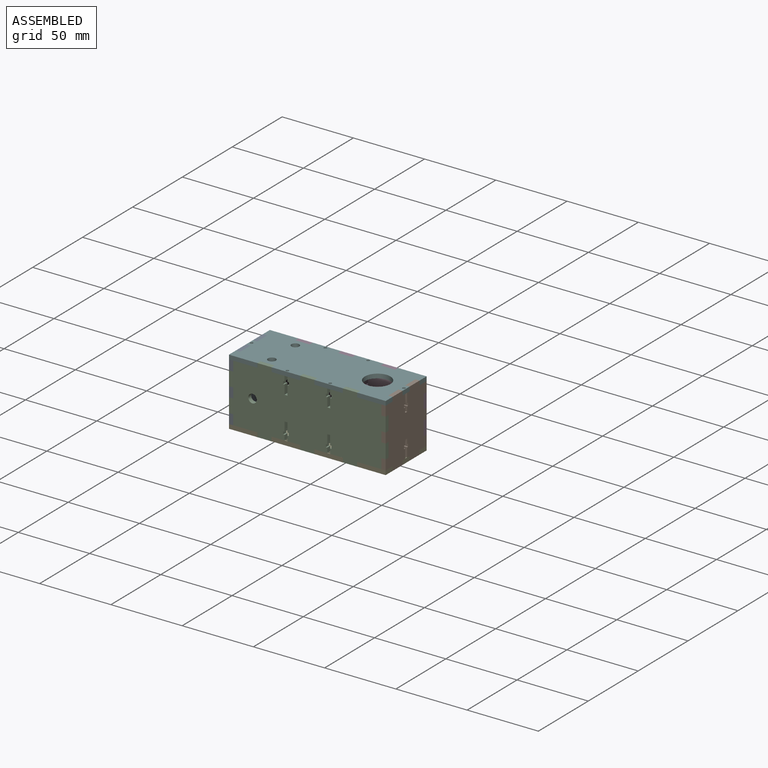
[diagram: assembled view]
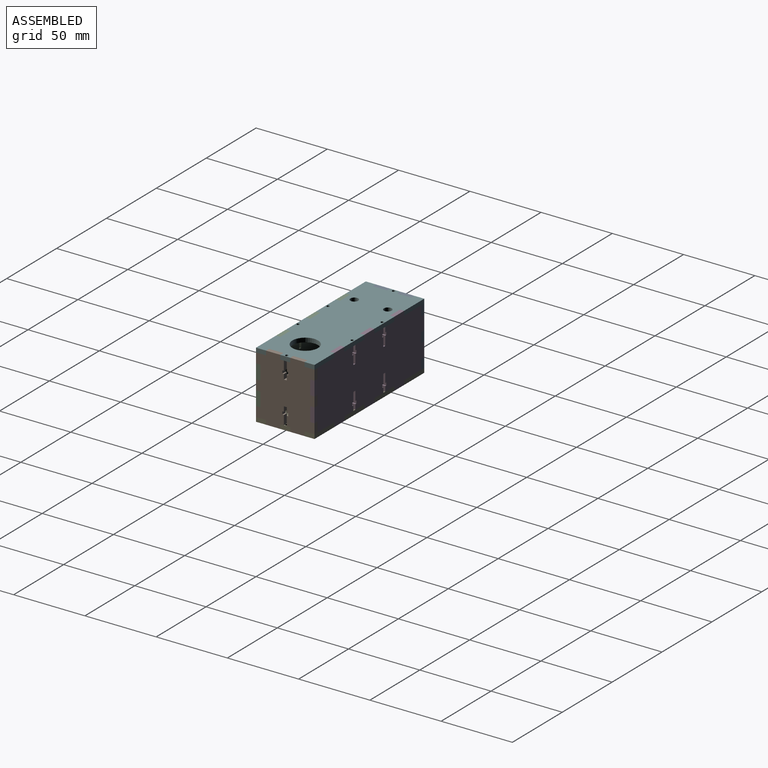
[diagram: assembled view, second angle]
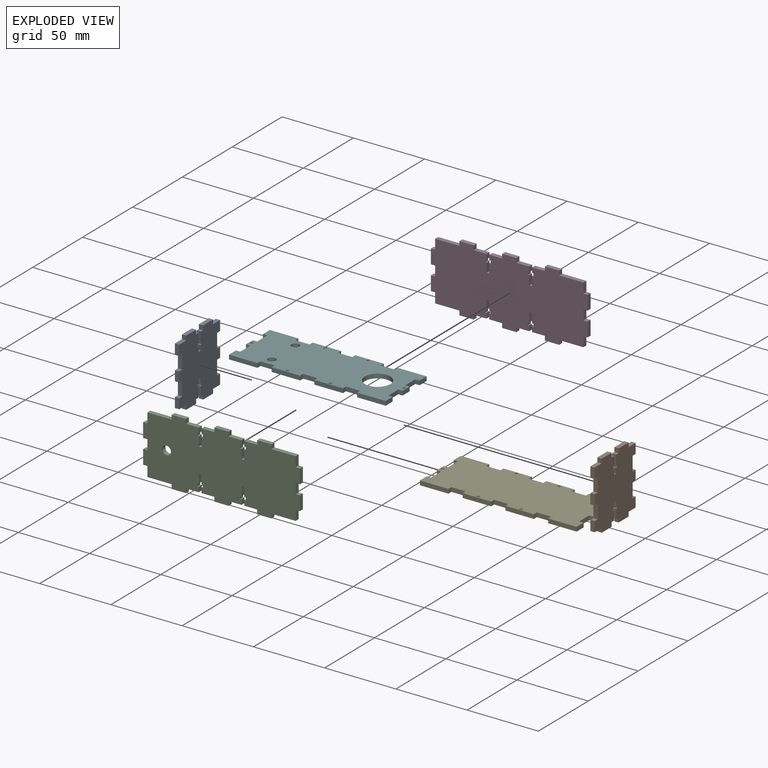
[diagram: exploded view]
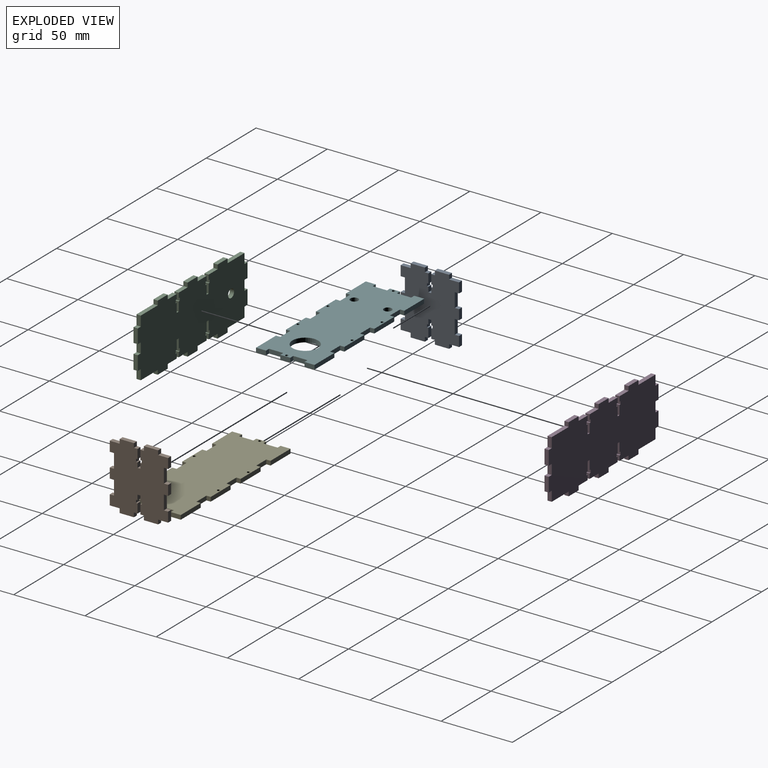
[diagram: exploded view, second angle]
ASSEMBLY  parts=6 mates=5
PART A: 62 faces, bbox 3x47x41 mm
  f0: plane 10x3mm, normal (0,-1,0), area 30mm2, adj f1,f59,f60,f61
  f1: plane 3x3mm, normal (0,0,-1), area 9mm2, adj f0,f2,f60,f61
  f2: plane 3x2.5mm, normal (0,-1,0), area 7.5mm2, adj f1,f3,f60,f61
  f3: plane 6.5x3mm, normal (0,0,-1), area 19.5mm2, adj f2,f4,f60,f61
  f4: plane 3x1mm, normal (0,1,0), area 3mm2, adj f3,f5,f60,f61
  f5: plane 3x2mm, normal (0,0,-1), area 6mm2, adj f4,f6,f60,f61
  f6: plane 3x1mm, normal (0,-1,0), area 3mm2, adj f5,f7,f60,f61
  f7: plane 3.5x3mm, normal (0,0,-1), area 10.5mm2, adj f6,f8,f60,f61
  f8: plane 3x2mm, normal (0,-1,0), area 6mm2, adj f7,f9,f60,f61
  f9: plane 3.5x3mm, normal (0,0,1), area 10.5mm2, adj f8,f10,f60,f61
  f10: plane 3x1mm, normal (0,-1,0), area 3mm2, adj f9,f11,f60,f61
  f11: plane 3x2mm, normal (0,0,1), area 6mm2, adj f10,f12,f60,f61
  f12: plane 3x1mm, normal (0,1,0), area 3mm2, adj f11,f13,f60,f61
  f13: plane 6.5x3mm, normal (0,0,1), area 19.5mm2, adj f12,f14,f60,f61
  f14: plane 3x2.5mm, normal (0,-1,0), area 7.5mm2, adj f13,f15,f60,f61
  f15: plane 3x3mm, normal (0,0,1), area 9mm2, adj f14,f16,f60,f61
  f16: plane 10x3mm, normal (0,-1,0), area 30mm2, adj f15,f17,f60,f61
  f17: plane 3x3mm, normal (0,0,-1), area 9mm2, adj f16,f18,f60,f61
  f18: plane 7x3mm, normal (0,-1,0), area 21mm2, adj f17,f19,f60,f61
  f19: plane 7x3mm, normal (0,0,-1), area 21mm2, adj f18,f20,f60,f61
  f20: plane 3x3mm, normal (0,1,0), area 9mm2, adj f19,f21,f60,f61
  f21: plane 10x3mm, normal (0,0,-1), area 30mm2, adj f20,f22,f60,f61
  f22: plane 3x3mm, normal (0,-1,0), area 9mm2, adj f21,f23,f60,f61
  f23: plane 7x3mm, normal (0,0,-1), area 21mm2, adj f22,f24,f60,f61
  f24: plane 3x3mm, normal (0,1,0), area 9mm2, adj f23,f25,f60,f61
  f25: plane 10x3mm, normal (0,0,-1), area 30mm2, adj f24,f26,f60,f61
  f26: plane 3x3mm, normal (0,-1,0), area 9mm2, adj f25,f27,f60,f61
  f27: plane 7x3mm, normal (0,0,-1), area 21mm2, adj f26,f28,f60,f61
  f28: plane 7x3mm, normal (0,1,0), area 21mm2, adj f27,f29,f60,f61
  f29: plane 3x3mm, normal (0,0,-1), area 9mm2, adj f28,f30,f60,f61
  f30: plane 10x3mm, normal (0,1,0), area 30mm2, adj f29,f31,f60,f61
  f31: plane 3x3mm, normal (0,0,1), area 9mm2, adj f30,f32,f60,f61
  f32: plane 3x2.5mm, normal (0,1,0), area 7.5mm2, adj f31,f33,f60,f61
  f33: plane 6.5x3mm, normal (0,0,1), area 19.5mm2, adj f32,f34,f60,f61
  f34: plane 3x1mm, normal (0,-1,0), area 3mm2, adj f33,f35,f60,f61
  f35: plane 3x2mm, normal (0,0,1), area 6mm2, adj f34,f36,f60,f61
  f36: plane 3x1mm, normal (0,1,0), area 3mm2, adj f35,f37,f60,f61
  f37: plane 3.5x3mm, normal (0,0,1), area 10.5mm2, adj f36,f38,f60,f61
  f38: plane 3x2mm, normal (0,1,0), area 6mm2, adj f37,f39,f60,f61
  f39: plane 3.5x3mm, normal (0,0,-1), area 10.5mm2, adj f38,f40,f60,f61
  f40: plane 3x1mm, normal (0,1,0), area 3mm2, adj f39,f41,f60,f61
  f41: plane 3x2mm, normal (0,0,-1), area 6mm2, adj f40,f42,f60,f61
  f42: plane 3x1mm, normal (0,-1,0), area 3mm2, adj f41,f43,f60,f61
  f43: plane 6.5x3mm, normal (0,0,-1), area 19.5mm2, adj f42,f44,f60,f61
  f44: plane 3x2.5mm, normal (0,1,0), area 7.5mm2, adj f43,f45,f60,f61
  f45: plane 3x3mm, normal (0,0,-1), area 9mm2, adj f44,f46,f60,f61
  f46: plane 10x3mm, normal (0,1,0), area 30mm2, adj f45,f47,f60,f61
  f47: plane 3x3mm, normal (0,0,1), area 9mm2, adj f46,f48,f60,f61
  f48: plane 7x3mm, normal (0,1,0), area 21mm2, adj f47,f49,f60,f61
  f49: plane 7x3mm, normal (0,0,1), area 21mm2, adj f48,f50,f60,f61
  f50: plane 3x3mm, normal (0,-1,0), area 9mm2, adj f49,f51,f60,f61
  f51: plane 10x3mm, normal (0,0,1), area 30mm2, adj f50,f52,f60,f61
  f52: plane 3x3mm, normal (0,1,0), area 9mm2, adj f51,f53,f60,f61
  f53: plane 7x3mm, normal (0,0,1), area 21mm2, adj f52,f54,f60,f61
  f54: plane 3x3mm, normal (0,-1,0), area 9mm2, adj f53,f55,f60,f61
  f55: plane 10x3mm, normal (0,0,1), area 30mm2, adj f54,f56,f60,f61
  f56: plane 3x3mm, normal (0,1,0), area 9mm2, adj f55,f57,f60,f61
  f57: plane 7x3mm, normal (0,0,1), area 21mm2, adj f56,f58,f60,f61
  f58: plane 7x3mm, normal (0,-1,0), area 21mm2, adj f57,f59,f60,f61
  f59: plane 3x3mm, normal (0,0,1), area 9mm2, adj f0,f58,f60,f61
  f60: plane 47x41mm, normal (1,0,0), area 1625mm2, adj f0,f1,f2,f3,f4,f5,f6,f7
  f61: plane 47x41mm, normal (-1,0,0), area 1625mm2, adj f0,f1,f2,f3,f4,f5,f6,f7
PART B: 62 faces, bbox 47x41x3 mm
  f0: plane 10x3mm, normal (-1,0,0), area 30mm2, adj f1,f59,f60,f61
  f1: plane 3x3mm, normal (0,-1,0), area 9mm2, adj f0,f2,f60,f61
  f2: plane 3x2.5mm, normal (-1,0,0), area 7.5mm2, adj f1,f3,f60,f61
  f3: plane 6.5x3mm, normal (0,-1,0), area 19.5mm2, adj f2,f4,f60,f61
  f4: plane 3x1mm, normal (1,0,0), area 3mm2, adj f3,f5,f60,f61
  f5: plane 3x2mm, normal (0,-1,0), area 6mm2, adj f4,f6,f60,f61
  f6: plane 3x1mm, normal (-1,0,0), area 3mm2, adj f5,f7,f60,f61
  f7: plane 3.5x3mm, normal (0,-1,0), area 10.5mm2, adj f6,f8,f60,f61
  f8: plane 3x2mm, normal (-1,0,0), area 6mm2, adj f7,f9,f60,f61
  f9: plane 3.5x3mm, normal (0,1,0), area 10.5mm2, adj f8,f10,f60,f61
  f10: plane 3x1mm, normal (-1,0,0), area 3mm2, adj f9,f11,f60,f61
  f11: plane 3x2mm, normal (0,1,0), area 6mm2, adj f10,f12,f60,f61
  f12: plane 3x1mm, normal (1,0,0), area 3mm2, adj f11,f13,f60,f61
  f13: plane 6.5x3mm, normal (0,1,0), area 19.5mm2, adj f12,f14,f60,f61
  f14: plane 3x2.5mm, normal (-1,0,0), area 7.5mm2, adj f13,f15,f60,f61
  f15: plane 3x3mm, normal (0,1,0), area 9mm2, adj f14,f16,f60,f61
  f16: plane 10x3mm, normal (-1,0,0), area 30mm2, adj f15,f17,f60,f61
  f17: plane 3x3mm, normal (0,-1,0), area 9mm2, adj f16,f18,f60,f61
  f18: plane 7x3mm, normal (-1,0,0), area 21mm2, adj f17,f19,f60,f61
  f19: plane 7x3mm, normal (0,-1,0), area 21mm2, adj f18,f20,f60,f61
  f20: plane 3x3mm, normal (1,0,0), area 9mm2, adj f19,f21,f60,f61
  f21: plane 10x3mm, normal (0,-1,0), area 30mm2, adj f20,f22,f60,f61
  f22: plane 3x3mm, normal (-1,0,0), area 9mm2, adj f21,f23,f60,f61
  f23: plane 7x3mm, normal (0,-1,0), area 21mm2, adj f22,f24,f60,f61
  f24: plane 3x3mm, normal (1,0,0), area 9mm2, adj f23,f25,f60,f61
  f25: plane 10x3mm, normal (0,-1,0), area 30mm2, adj f24,f26,f60,f61
  f26: plane 3x3mm, normal (-1,0,0), area 9mm2, adj f25,f27,f60,f61
  f27: plane 7x3mm, normal (0,-1,0), area 21mm2, adj f26,f28,f60,f61
  f28: plane 7x3mm, normal (1,0,0), area 21mm2, adj f27,f29,f60,f61
  f29: plane 3x3mm, normal (0,-1,0), area 9mm2, adj f28,f30,f60,f61
  f30: plane 10x3mm, normal (1,0,0), area 30mm2, adj f29,f31,f60,f61
  f31: plane 3x3mm, normal (0,1,0), area 9mm2, adj f30,f32,f60,f61
  f32: plane 3x2.5mm, normal (1,0,0), area 7.5mm2, adj f31,f33,f60,f61
  f33: plane 6.5x3mm, normal (0,1,0), area 19.5mm2, adj f32,f34,f60,f61
  f34: plane 3x1mm, normal (-1,0,0), area 3mm2, adj f33,f35,f60,f61
  f35: plane 3x2mm, normal (0,1,0), area 6mm2, adj f34,f36,f60,f61
  f36: plane 3x1mm, normal (1,0,0), area 3mm2, adj f35,f37,f60,f61
  f37: plane 3.5x3mm, normal (0,1,0), area 10.5mm2, adj f36,f38,f60,f61
  f38: plane 3x2mm, normal (1,0,0), area 6mm2, adj f37,f39,f60,f61
  f39: plane 3.5x3mm, normal (0,-1,0), area 10.5mm2, adj f38,f40,f60,f61
  f40: plane 3x1mm, normal (1,0,0), area 3mm2, adj f39,f41,f60,f61
  f41: plane 3x2mm, normal (0,-1,0), area 6mm2, adj f40,f42,f60,f61
  f42: plane 3x1mm, normal (-1,0,0), area 3mm2, adj f41,f43,f60,f61
  f43: plane 6.5x3mm, normal (0,-1,0), area 19.5mm2, adj f42,f44,f60,f61
  f44: plane 3x2.5mm, normal (1,0,0), area 7.5mm2, adj f43,f45,f60,f61
  f45: plane 3x3mm, normal (0,-1,0), area 9mm2, adj f44,f46,f60,f61
  f46: plane 10x3mm, normal (1,0,0), area 30mm2, adj f45,f47,f60,f61
  f47: plane 3x3mm, normal (0,1,0), area 9mm2, adj f46,f48,f60,f61
  f48: plane 7x3mm, normal (1,0,0), area 21mm2, adj f47,f49,f60,f61
  f49: plane 7x3mm, normal (0,1,0), area 21mm2, adj f48,f50,f60,f61
  f50: plane 3x3mm, normal (-1,0,0), area 9mm2, adj f49,f51,f60,f61
  f51: plane 10x3mm, normal (0,1,0), area 30mm2, adj f50,f52,f60,f61
  f52: plane 3x3mm, normal (1,0,0), area 9mm2, adj f51,f53,f60,f61
  f53: plane 7x3mm, normal (0,1,0), area 21mm2, adj f52,f54,f60,f61
  f54: plane 3x3mm, normal (-1,0,0), area 9mm2, adj f53,f55,f60,f61
  f55: plane 10x3mm, normal (0,1,0), area 30mm2, adj f54,f56,f60,f61
  f56: plane 3x3mm, normal (1,0,0), area 9mm2, adj f55,f57,f60,f61
  f57: plane 7x3mm, normal (0,1,0), area 21mm2, adj f56,f58,f60,f61
  f58: plane 7x3mm, normal (-1,0,0), area 21mm2, adj f57,f59,f60,f61
  f59: plane 3x3mm, normal (0,1,0), area 9mm2, adj f0,f58,f60,f61
  f60: plane 47x41mm, normal (0,0,1), area 1625mm2, adj f0,f1,f2,f3,f4,f5,f6,f7
  f61: plane 47x41mm, normal (0,0,-1), area 1625mm2, adj f0,f1,f2,f3,f4,f5,f6,f7
PART C: 95 faces, bbox 3x110x47 mm
  f0: plane 17x3mm, normal (0,0,1), area 51mm2, adj f1,f92,f93,f94
  f1: plane 3x3mm, normal (0,1,0), area 9mm2, adj f0,f2,f93,f94
  f2: plane 10x3mm, normal (0,0,1), area 30mm2, adj f1,f3,f93,f94
  f3: plane 3x3mm, normal (0,-1,0), area 9mm2, adj f2,f4,f93,f94
  f4: plane 9x3mm, normal (0,0,1), area 27mm2, adj f3,f5,f93,f94
  f5: plane 3.5x3mm, normal (0,-1,0), area 10.5mm2, adj f4,f6,f93,f94
  f6: plane 3x1mm, normal (0,0,-1), area 3mm2, adj f5,f7,f93,f94
  f7: plane 3x2mm, normal (0,-1,0), area 6mm2, adj f6,f8,f93,f94
  f8: plane 3x1mm, normal (0,0,1), area 3mm2, adj f7,f9,f93,f94
  f9: plane 6.5x3mm, normal (0,-1,0), area 19.5mm2, adj f8,f10,f93,f94
  f10: plane 3x2mm, normal (0,0,1), area 6mm2, adj f9,f11,f93,f94
  f11: plane 6.5x3mm, normal (0,1,0), area 19.5mm2, adj f10,f12,f93,f94
  f12: plane 3x1mm, normal (0,0,1), area 3mm2, adj f11,f13,f93,f94
  f13: plane 3x2mm, normal (0,1,0), area 6mm2, adj f12,f14,f93,f94
  f14: plane 3x1mm, normal (0,0,-1), area 3mm2, adj f13,f15,f93,f94
  f15: plane 3.5x3mm, normal (0,1,0), area 10.5mm2, adj f14,f16,f93,f94
  f16: plane 9x3mm, normal (0,0,1), area 27mm2, adj f15,f17,f93,f94
  f17: plane 3x3mm, normal (0,1,0), area 9mm2, adj f16,f18,f93,f94
  f18: plane 10x3mm, normal (0,0,1), area 30mm2, adj f17,f19,f93,f94
  f19: plane 3x3mm, normal (0,-1,0), area 9mm2, adj f18,f20,f93,f94
  f20: plane 9x3mm, normal (0,0,1), area 27mm2, adj f19,f21,f93,f94
  f21: plane 3.5x3mm, normal (0,-1,0), area 10.5mm2, adj f20,f22,f93,f94
  f22: plane 3x1mm, normal (0,0,-1), area 3mm2, adj f21,f23,f93,f94
  f23: plane 3x2mm, normal (0,-1,0), area 6mm2, adj f22,f24,f93,f94
  f24: plane 3x1mm, normal (0,0,1), area 3mm2, adj f23,f25,f93,f94
  f25: plane 6.5x3mm, normal (0,-1,0), area 19.5mm2, adj f24,f26,f93,f94
  f26: plane 3x2mm, normal (0,0,1), area 6mm2, adj f25,f27,f93,f94
  f27: plane 6.5x3mm, normal (0,1,0), area 19.5mm2, adj f26,f28,f93,f94
  f28: plane 3x1mm, normal (0,0,1), area 3mm2, adj f27,f29,f93,f94
  f29: plane 3x2mm, normal (0,1,0), area 6mm2, adj f28,f30,f93,f94
  f30: plane 3x1mm, normal (0,0,-1), area 3mm2, adj f29,f31,f93,f94
  f31: plane 3.5x3mm, normal (0,1,0), area 10.5mm2, adj f30,f32,f93,f94
  f32: plane 9x3mm, normal (0,0,1), area 27mm2, adj f31,f33,f93,f94
  f33: plane 3x3mm, normal (0,1,0), area 9mm2, adj f32,f34,f93,f94
  f34: plane 10x3mm, normal (0,0,1), area 30mm2, adj f33,f35,f93,f94
  f35: plane 3x3mm, normal (0,-1,0), area 9mm2, adj f34,f36,f93,f94
  f36: plane 17x3mm, normal (0,0,1), area 51mm2, adj f35,f37,f93,f94
  f37: plane 7x3mm, normal (0,-1,0), area 21mm2, adj f36,f38,f93,f94
  f38: plane 3x3mm, normal (0,0,1), area 9mm2, adj f37,f39,f93,f94
  f39: plane 10x3mm, normal (0,-1,0), area 30mm2, adj f38,f40,f93,f94
  f40: plane 3x3mm, normal (0,0,-1), area 9mm2, adj f39,f41,f93,f94
  f41: plane 7x3mm, normal (0,-1,0), area 21mm2, adj f40,f42,f93,f94
  f42: plane 3x3mm, normal (0,0,1), area 9mm2, adj f41,f43,f93,f94
  f43: plane 10x3mm, normal (0,-1,0), area 30mm2, adj f42,f44,f93,f94
  f44: plane 3x3mm, normal (0,0,-1), area 9mm2, adj f43,f45,f93,f94
  f45: plane 7x3mm, normal (0,-1,0), area 21mm2, adj f44,f46,f93,f94
  f46: plane 17x3mm, normal (0,0,-1), area 51mm2, adj f45,f47,f93,f94
  f47: plane 3x3mm, normal (0,-1,0), area 9mm2, adj f46,f48,f93,f94
  f48: plane 10x3mm, normal (0,0,-1), area 30mm2, adj f47,f49,f93,f94
  f49: plane 3x3mm, normal (0,1,0), area 9mm2, adj f48,f50,f93,f94
  f50: plane 9x3mm, normal (0,0,-1), area 27mm2, adj f49,f51,f93,f94
  f51: plane 3.5x3mm, normal (0,1,0), area 10.5mm2, adj f50,f52,f93,f94
  f52: plane 3x1mm, normal (0,0,1), area 3mm2, adj f51,f53,f93,f94
  f53: plane 3x2mm, normal (0,1,0), area 6mm2, adj f52,f54,f93,f94
  f54: plane 3x1mm, normal (0,0,-1), area 3mm2, adj f53,f55,f93,f94
  f55: plane 6.5x3mm, normal (0,1,0), area 19.5mm2, adj f54,f56,f93,f94
  f56: plane 3x2mm, normal (0,0,-1), area 6mm2, adj f55,f57,f93,f94
  f57: plane 6.5x3mm, normal (0,-1,0), area 19.5mm2, adj f56,f58,f93,f94
  f58: plane 3x1mm, normal (0,0,-1), area 3mm2, adj f57,f59,f93,f94
  f59: plane 3x2mm, normal (0,-1,0), area 6mm2, adj f58,f60,f93,f94
  f60: plane 3x1mm, normal (0,0,1), area 3mm2, adj f59,f61,f93,f94
  f61: plane 3.5x3mm, normal (0,-1,0), area 10.5mm2, adj f60,f62,f93,f94
  f62: plane 9x3mm, normal (0,0,-1), area 27mm2, adj f61,f63,f93,f94
  f63: plane 3x3mm, normal (0,-1,0), area 9mm2, adj f62,f64,f93,f94
  f64: plane 10x3mm, normal (0,0,-1), area 30mm2, adj f63,f65,f93,f94
  f65: plane 3x3mm, normal (0,1,0), area 9mm2, adj f64,f66,f93,f94
  f66: plane 9x3mm, normal (0,0,-1), area 27mm2, adj f65,f67,f93,f94
  f67: plane 3.5x3mm, normal (0,1,0), area 10.5mm2, adj f66,f68,f93,f94
  f68: plane 3x1mm, normal (0,0,1), area 3mm2, adj f67,f69,f93,f94
  f69: plane 3x2mm, normal (0,1,0), area 6mm2, adj f68,f70,f93,f94
  f70: plane 3x1mm, normal (0,0,-1), area 3mm2, adj f69,f71,f93,f94
  f71: plane 6.5x3mm, normal (0,1,0), area 19.5mm2, adj f70,f72,f93,f94
  f72: plane 3x2mm, normal (0,0,-1), area 6mm2, adj f71,f73,f93,f94
  f73: plane 6.5x3mm, normal (0,-1,0), area 19.5mm2, adj f72,f74,f93,f94
  f74: plane 3x1mm, normal (0,0,-1), area 3mm2, adj f73,f75,f93,f94
  f75: plane 3x2mm, normal (0,-1,0), area 6mm2, adj f74,f76,f93,f94
  f76: plane 3x1mm, normal (0,0,1), area 3mm2, adj f75,f77,f93,f94
  f77: plane 3.5x3mm, normal (0,-1,0), area 10.5mm2, adj f76,f78,f93,f94
  f78: plane 9x3mm, normal (0,0,-1), area 27mm2, adj f77,f79,f93,f94
  f79: plane 3x3mm, normal (0,-1,0), area 9mm2, adj f78,f80,f93,f94
  f80: plane 10x3mm, normal (0,0,-1), area 30mm2, adj f79,f81,f93,f94
  f81: plane 3x3mm, normal (0,1,0), area 9mm2, adj f80,f82,f93,f94
  f82: plane 17x3mm, normal (0,0,-1), area 51mm2, adj f81,f83,f93,f94
  f83: plane 7x3mm, normal (0,1,0), area 21mm2, adj f82,f84,f93,f94
  f84: plane 3x3mm, normal (0,0,-1), area 9mm2, adj f83,f85,f93,f94
  f85: plane 10x3mm, normal (0,1,0), area 30mm2, adj f84,f86,f93,f94
  f86: plane 3x3mm, normal (0,0,1), area 9mm2, adj f85,f87,f93,f94
  f87: plane 7x3mm, normal (0,1,0), area 21mm2, adj f86,f88,f93,f94
  f88: plane 3x3mm, normal (0,0,-1), area 9mm2, adj f87,f89,f93,f94
  f89: plane 10x3mm, normal (0,1,0), area 30mm2, adj f88,f90,f93,f94
  f90: plane 3x3mm, normal (0,0,1), area 9mm2, adj f89,f92,f93,f94
  f91: cylinder r=3mm len=6mm, axis (-1,0,0), area 56.5mm2, adj f93,f94
  f92: plane 7x3mm, normal (0,1,0), area 21mm2, adj f0,f90,f93,f94
  f93: plane 110x47mm, normal (1,0,0), area 4423.7mm2, adj f0,f1,f2,f3,f4,f5,f6,f7
  f94: plane 110x47mm, normal (-1,0,0), area 4423.7mm2, adj f0,f1,f2,f3,f4,f5,f6,f7
PART D: 94 faces, bbox 3x110x47 mm
  f0: plane 17x3mm, normal (0,0,1), area 51mm2, adj f1,f91,f92,f93
  f1: plane 3x3mm, normal (0,1,0), area 9mm2, adj f0,f2,f92,f93
  f2: plane 10x3mm, normal (0,0,1), area 30mm2, adj f1,f3,f92,f93
  f3: plane 3x3mm, normal (0,-1,0), area 9mm2, adj f2,f4,f92,f93
  f4: plane 9x3mm, normal (0,0,1), area 27mm2, adj f3,f5,f92,f93
  f5: plane 3.5x3mm, normal (0,-1,0), area 10.5mm2, adj f4,f6,f92,f93
  f6: plane 3x1mm, normal (0,0,-1), area 3mm2, adj f5,f7,f92,f93
  f7: plane 3x2mm, normal (0,-1,0), area 6mm2, adj f6,f8,f92,f93
  f8: plane 3x1mm, normal (0,0,1), area 3mm2, adj f7,f9,f92,f93
  f9: plane 6.5x3mm, normal (0,-1,0), area 19.5mm2, adj f8,f10,f92,f93
  f10: plane 3x2mm, normal (0,0,1), area 6mm2, adj f9,f11,f92,f93
  f11: plane 6.5x3mm, normal (0,1,0), area 19.5mm2, adj f10,f12,f92,f93
  f12: plane 3x1mm, normal (0,0,1), area 3mm2, adj f11,f13,f92,f93
  f13: plane 3x2mm, normal (0,1,0), area 6mm2, adj f12,f14,f92,f93
  f14: plane 3x1mm, normal (0,0,-1), area 3mm2, adj f13,f15,f92,f93
  f15: plane 3.5x3mm, normal (0,1,0), area 10.5mm2, adj f14,f16,f92,f93
  f16: plane 9x3mm, normal (0,0,1), area 27mm2, adj f15,f17,f92,f93
  f17: plane 3x3mm, normal (0,1,0), area 9mm2, adj f16,f18,f92,f93
  f18: plane 10x3mm, normal (0,0,1), area 30mm2, adj f17,f19,f92,f93
  f19: plane 3x3mm, normal (0,-1,0), area 9mm2, adj f18,f20,f92,f93
  f20: plane 9x3mm, normal (0,0,1), area 27mm2, adj f19,f21,f92,f93
  f21: plane 3.5x3mm, normal (0,-1,0), area 10.5mm2, adj f20,f22,f92,f93
  f22: plane 3x1mm, normal (0,0,-1), area 3mm2, adj f21,f23,f92,f93
  f23: plane 3x2mm, normal (0,-1,0), area 6mm2, adj f22,f24,f92,f93
  f24: plane 3x1mm, normal (0,0,1), area 3mm2, adj f23,f25,f92,f93
  f25: plane 6.5x3mm, normal (0,-1,0), area 19.5mm2, adj f24,f26,f92,f93
  f26: plane 3x2mm, normal (0,0,1), area 6mm2, adj f25,f27,f92,f93
  f27: plane 6.5x3mm, normal (0,1,0), area 19.5mm2, adj f26,f28,f92,f93
  f28: plane 3x1mm, normal (0,0,1), area 3mm2, adj f27,f29,f92,f93
  f29: plane 3x2mm, normal (0,1,0), area 6mm2, adj f28,f30,f92,f93
  f30: plane 3x1mm, normal (0,0,-1), area 3mm2, adj f29,f31,f92,f93
  f31: plane 3.5x3mm, normal (0,1,0), area 10.5mm2, adj f30,f32,f92,f93
  f32: plane 9x3mm, normal (0,0,1), area 27mm2, adj f31,f33,f92,f93
  f33: plane 3x3mm, normal (0,1,0), area 9mm2, adj f32,f34,f92,f93
  f34: plane 10x3mm, normal (0,0,1), area 30mm2, adj f33,f35,f92,f93
  f35: plane 3x3mm, normal (0,-1,0), area 9mm2, adj f34,f36,f92,f93
  f36: plane 17x3mm, normal (0,0,1), area 51mm2, adj f35,f37,f92,f93
  f37: plane 7x3mm, normal (0,-1,0), area 21mm2, adj f36,f38,f92,f93
  f38: plane 3x3mm, normal (0,0,1), area 9mm2, adj f37,f39,f92,f93
  f39: plane 10x3mm, normal (0,-1,0), area 30mm2, adj f38,f40,f92,f93
  f40: plane 3x3mm, normal (0,0,-1), area 9mm2, adj f39,f41,f92,f93
  f41: plane 7x3mm, normal (0,-1,0), area 21mm2, adj f40,f42,f92,f93
  f42: plane 3x3mm, normal (0,0,1), area 9mm2, adj f41,f43,f92,f93
  f43: plane 10x3mm, normal (0,-1,0), area 30mm2, adj f42,f44,f92,f93
  f44: plane 3x3mm, normal (0,0,-1), area 9mm2, adj f43,f45,f92,f93
  f45: plane 7x3mm, normal (0,-1,0), area 21mm2, adj f44,f46,f92,f93
  f46: plane 17x3mm, normal (0,0,-1), area 51mm2, adj f45,f47,f92,f93
  f47: plane 3x3mm, normal (0,-1,0), area 9mm2, adj f46,f48,f92,f93
  f48: plane 10x3mm, normal (0,0,-1), area 30mm2, adj f47,f49,f92,f93
  f49: plane 3x3mm, normal (0,1,0), area 9mm2, adj f48,f50,f92,f93
  f50: plane 9x3mm, normal (0,0,-1), area 27mm2, adj f49,f51,f92,f93
  f51: plane 3.5x3mm, normal (0,1,0), area 10.5mm2, adj f50,f52,f92,f93
  f52: plane 3x1mm, normal (0,0,1), area 3mm2, adj f51,f53,f92,f93
  f53: plane 3x2mm, normal (0,1,0), area 6mm2, adj f52,f54,f92,f93
  f54: plane 3x1mm, normal (0,0,-1), area 3mm2, adj f53,f55,f92,f93
  f55: plane 6.5x3mm, normal (0,1,0), area 19.5mm2, adj f54,f56,f92,f93
  f56: plane 3x2mm, normal (0,0,-1), area 6mm2, adj f55,f57,f92,f93
  f57: plane 6.5x3mm, normal (0,-1,0), area 19.5mm2, adj f56,f58,f92,f93
  f58: plane 3x1mm, normal (0,0,-1), area 3mm2, adj f57,f59,f92,f93
  f59: plane 3x2mm, normal (0,-1,0), area 6mm2, adj f58,f60,f92,f93
  f60: plane 3x1mm, normal (0,0,1), area 3mm2, adj f59,f61,f92,f93
  f61: plane 3.5x3mm, normal (0,-1,0), area 10.5mm2, adj f60,f62,f92,f93
  f62: plane 9x3mm, normal (0,0,-1), area 27mm2, adj f61,f63,f92,f93
  f63: plane 3x3mm, normal (0,-1,0), area 9mm2, adj f62,f64,f92,f93
  f64: plane 10x3mm, normal (0,0,-1), area 30mm2, adj f63,f65,f92,f93
  f65: plane 3x3mm, normal (0,1,0), area 9mm2, adj f64,f66,f92,f93
  f66: plane 9x3mm, normal (0,0,-1), area 27mm2, adj f65,f67,f92,f93
  f67: plane 3.5x3mm, normal (0,1,0), area 10.5mm2, adj f66,f68,f92,f93
  f68: plane 3x1mm, normal (0,0,1), area 3mm2, adj f67,f69,f92,f93
  f69: plane 3x2mm, normal (0,1,0), area 6mm2, adj f68,f70,f92,f93
  f70: plane 3x1mm, normal (0,0,-1), area 3mm2, adj f69,f71,f92,f93
  f71: plane 6.5x3mm, normal (0,1,0), area 19.5mm2, adj f70,f72,f92,f93
  f72: plane 3x2mm, normal (0,0,-1), area 6mm2, adj f71,f73,f92,f93
  f73: plane 6.5x3mm, normal (0,-1,0), area 19.5mm2, adj f72,f74,f92,f93
  f74: plane 3x1mm, normal (0,0,-1), area 3mm2, adj f73,f75,f92,f93
  f75: plane 3x2mm, normal (0,-1,0), area 6mm2, adj f74,f76,f92,f93
  f76: plane 3x1mm, normal (0,0,1), area 3mm2, adj f75,f77,f92,f93
  f77: plane 3.5x3mm, normal (0,-1,0), area 10.5mm2, adj f76,f78,f92,f93
  f78: plane 9x3mm, normal (0,0,-1), area 27mm2, adj f77,f79,f92,f93
  f79: plane 3x3mm, normal (0,-1,0), area 9mm2, adj f78,f80,f92,f93
  f80: plane 10x3mm, normal (0,0,-1), area 30mm2, adj f79,f81,f92,f93
  f81: plane 3x3mm, normal (0,1,0), area 9mm2, adj f80,f82,f92,f93
  f82: plane 17x3mm, normal (0,0,-1), area 51mm2, adj f81,f83,f92,f93
  f83: plane 7x3mm, normal (0,1,0), area 21mm2, adj f82,f84,f92,f93
  f84: plane 3x3mm, normal (0,0,-1), area 9mm2, adj f83,f85,f92,f93
  f85: plane 10x3mm, normal (0,1,0), area 30mm2, adj f84,f86,f92,f93
  f86: plane 3x3mm, normal (0,0,1), area 9mm2, adj f85,f87,f92,f93
  f87: plane 7x3mm, normal (0,1,0), area 21mm2, adj f86,f88,f92,f93
  f88: plane 3x3mm, normal (0,0,-1), area 9mm2, adj f87,f89,f92,f93
  f89: plane 10x3mm, normal (0,1,0), area 30mm2, adj f88,f90,f92,f93
  f90: plane 3x3mm, normal (0,0,1), area 9mm2, adj f89,f91,f92,f93
  f91: plane 7x3mm, normal (0,1,0), area 21mm2, adj f0,f90,f92,f93
  f92: plane 110x47mm, normal (1,0,0), area 4452mm2, adj f0,f1,f2,f3,f4,f5,f6,f7
  f93: plane 110x47mm, normal (-1,0,0), area 4452mm2, adj f0,f1,f2,f3,f4,f5,f6,f7
PART E: 52 faces, bbox 3x110x41 mm
  f0: plane 10x3mm, normal (0,1,0), area 30mm2, adj f1,f47,f50,f51
  f1: plane 3x3mm, normal (0,0,-1), area 9mm2, adj f0,f2,f50,f51
  f2: plane 7x3mm, normal (0,1,0), area 21mm2, adj f1,f3,f50,f51
  f3: plane 3x3mm, normal (0,0,1), area 9mm2, adj f2,f4,f50,f51
  f4: plane 10x3mm, normal (0,1,0), area 30mm2, adj f3,f5,f50,f51
  f5: plane 3x3mm, normal (0,0,-1), area 9mm2, adj f4,f6,f50,f51
  f6: plane 7x3mm, normal (0,1,0), area 21mm2, adj f5,f7,f50,f51
  f7: plane 20x3mm, normal (0,0,1), area 60mm2, adj f6,f8,f50,f51
  f8: plane 3x3mm, normal (0,-1,0), area 9mm2, adj f7,f9,f50,f51
  f9: plane 10x3mm, normal (0,0,1), area 30mm2, adj f8,f10,f50,f51
  f10: plane 3x3mm, normal (0,1,0), area 9mm2, adj f9,f11,f50,f51
  f11: plane 20x3mm, normal (0,0,1), area 60mm2, adj f10,f12,f50,f51
  f12: plane 3x3mm, normal (0,-1,0), area 9mm2, adj f11,f13,f50,f51
  f13: plane 10x3mm, normal (0,0,1), area 30mm2, adj f12,f14,f50,f51
  f14: plane 3x3mm, normal (0,1,0), area 9mm2, adj f13,f15,f50,f51
  f15: plane 20x3mm, normal (0,0,1), area 60mm2, adj f14,f16,f50,f51
  f16: plane 3x3mm, normal (0,-1,0), area 9mm2, adj f15,f17,f50,f51
  f17: plane 10x3mm, normal (0,0,1), area 30mm2, adj f16,f18,f50,f51
  f18: plane 3x3mm, normal (0,1,0), area 9mm2, adj f17,f19,f50,f51
  f19: plane 20x3mm, normal (0,0,1), area 60mm2, adj f18,f20,f50,f51
  f20: plane 7x3mm, normal (0,-1,0), area 21mm2, adj f19,f21,f50,f51
  f21: plane 3x3mm, normal (0,0,-1), area 9mm2, adj f20,f22,f50,f51
  f22: plane 10x3mm, normal (0,-1,0), area 30mm2, adj f21,f23,f50,f51
  f23: plane 3x3mm, normal (0,0,1), area 9mm2, adj f22,f24,f50,f51
  f24: plane 7x3mm, normal (0,-1,0), area 21mm2, adj f23,f25,f50,f51
  f25: plane 3x3mm, normal (0,0,-1), area 9mm2, adj f24,f26,f50,f51
  f26: plane 10x3mm, normal (0,-1,0), area 30mm2, adj f25,f27,f50,f51
  f27: plane 3x3mm, normal (0,0,1), area 9mm2, adj f26,f28,f50,f51
  f28: plane 7x3mm, normal (0,-1,0), area 21mm2, adj f27,f29,f50,f51
  f29: plane 20x3mm, normal (0,0,-1), area 60mm2, adj f28,f30,f50,f51
  f30: plane 3x3mm, normal (0,1,0), area 9mm2, adj f29,f31,f50,f51
  f31: plane 10x3mm, normal (0,0,-1), area 30mm2, adj f30,f32,f50,f51
  f32: plane 3x3mm, normal (0,-1,0), area 9mm2, adj f31,f33,f50,f51
  f33: plane 20x3mm, normal (0,0,-1), area 60mm2, adj f32,f34,f50,f51
  f34: plane 3x3mm, normal (0,1,0), area 9mm2, adj f33,f35,f50,f51
  f35: plane 10x3mm, normal (0,0,-1), area 30mm2, adj f34,f36,f50,f51
  f36: plane 3x3mm, normal (0,-1,0), area 9mm2, adj f35,f37,f50,f51
  f37: plane 20x3mm, normal (0,0,-1), area 60mm2, adj f36,f38,f50,f51
  f38: plane 3x3mm, normal (0,1,0), area 9mm2, adj f37,f39,f50,f51
  f39: plane 10x3mm, normal (0,0,-1), area 30mm2, adj f38,f40,f50,f51
  f40: plane 3x3mm, normal (0,-1,0), area 9mm2, adj f39,f41,f50,f51
  f41: plane 20x3mm, normal (0,0,-1), area 60mm2, adj f40,f42,f50,f51
  f42: plane 7x3mm, normal (0,1,0), area 21mm2, adj f41,f47,f50,f51
  f43: cylinder r=1mm len=3mm, axis (-1,0,0), area 18.8mm2, adj f50,f51
  f44: cylinder r=1mm len=3mm, axis (-1,0,0), area 18.8mm2, adj f50,f51
  f45: cylinder r=1mm len=3mm, axis (-1,0,0), area 18.8mm2, adj f50,f51
  f46: cylinder r=1mm len=3mm, axis (-1,0,0), area 18.8mm2, adj f50,f51
  f47: plane 3x3mm, normal (0,0,1), area 9mm2, adj f0,f42,f50,f51
  f48: cylinder r=1mm len=3mm, axis (-1,0,0), area 18.8mm2, adj f50,f51
  f49: cylinder r=1mm len=3mm, axis (-1,0,0), area 18.8mm2, adj f50,f51
  f50: plane 110x41mm, normal (1,0,0), area 4191.2mm2, adj f0,f1,f2,f3,f4,f5,f6,f7
  f51: plane 110x41mm, normal (-1,0,0), area 4191.2mm2, adj f0,f1,f2,f3,f4,f5,f6,f7
PART F: 55 faces, bbox 110x41x3 mm
  f0: plane 10x3mm, normal (1,0,0), area 30mm2, adj f1,f46,f53,f54
  f1: plane 3x3mm, normal (0,-1,0), area 9mm2, adj f0,f2,f53,f54
  f2: plane 7x3mm, normal (1,0,0), area 21mm2, adj f1,f3,f53,f54
  f3: plane 3x3mm, normal (0,1,0), area 9mm2, adj f2,f4,f53,f54
  f4: plane 10x3mm, normal (1,0,0), area 30mm2, adj f3,f5,f53,f54
  f5: plane 3x3mm, normal (0,-1,0), area 9mm2, adj f4,f6,f53,f54
  f6: plane 7x3mm, normal (1,0,0), area 21mm2, adj f5,f7,f53,f54
  f7: plane 20x3mm, normal (0,1,0), area 60mm2, adj f6,f8,f53,f54
  f8: plane 3x3mm, normal (-1,0,0), area 9mm2, adj f7,f9,f53,f54
  f9: plane 10x3mm, normal (0,1,0), area 30mm2, adj f8,f10,f53,f54
  f10: plane 3x3mm, normal (1,0,0), area 9mm2, adj f9,f11,f53,f54
  f11: plane 20x3mm, normal (0,1,0), area 60mm2, adj f10,f12,f53,f54
  f12: plane 3x3mm, normal (-1,0,0), area 9mm2, adj f11,f13,f53,f54
  f13: plane 10x3mm, normal (0,1,0), area 30mm2, adj f12,f14,f53,f54
  f14: plane 3x3mm, normal (1,0,0), area 9mm2, adj f13,f15,f53,f54
  f15: plane 20x3mm, normal (0,1,0), area 60mm2, adj f14,f16,f53,f54
  f16: plane 3x3mm, normal (-1,0,0), area 9mm2, adj f15,f17,f53,f54
  f17: plane 10x3mm, normal (0,1,0), area 30mm2, adj f16,f18,f53,f54
  f18: plane 3x3mm, normal (1,0,0), area 9mm2, adj f17,f19,f53,f54
  f19: plane 20x3mm, normal (0,1,0), area 60mm2, adj f18,f20,f53,f54
  f20: plane 7x3mm, normal (-1,0,0), area 21mm2, adj f19,f21,f53,f54
  f21: plane 3x3mm, normal (0,-1,0), area 9mm2, adj f20,f22,f53,f54
  f22: plane 10x3mm, normal (-1,0,0), area 30mm2, adj f21,f23,f53,f54
  f23: plane 3x3mm, normal (0,1,0), area 9mm2, adj f22,f24,f53,f54
  f24: plane 7x3mm, normal (-1,0,0), area 21mm2, adj f23,f25,f53,f54
  f25: plane 3x3mm, normal (0,-1,0), area 9mm2, adj f24,f26,f53,f54
  f26: plane 10x3mm, normal (-1,0,0), area 30mm2, adj f25,f27,f53,f54
  f27: plane 3x3mm, normal (0,1,0), area 9mm2, adj f26,f28,f53,f54
  f28: plane 7x3mm, normal (-1,0,0), area 21mm2, adj f27,f29,f53,f54
  f29: plane 20x3mm, normal (0,-1,0), area 60mm2, adj f28,f30,f53,f54
  f30: plane 3x3mm, normal (1,0,0), area 9mm2, adj f29,f31,f53,f54
  f31: plane 10x3mm, normal (0,-1,0), area 30mm2, adj f30,f32,f53,f54
  f32: plane 3x3mm, normal (-1,0,0), area 9mm2, adj f31,f33,f53,f54
  f33: plane 20x3mm, normal (0,-1,0), area 60mm2, adj f32,f34,f53,f54
  f34: plane 3x3mm, normal (1,0,0), area 9mm2, adj f33,f35,f53,f54
  f35: plane 10x3mm, normal (0,-1,0), area 30mm2, adj f34,f36,f53,f54
  f36: plane 3x3mm, normal (-1,0,0), area 9mm2, adj f35,f37,f53,f54
  f37: plane 20x3mm, normal (0,-1,0), area 60mm2, adj f36,f38,f53,f54
  f38: plane 3x3mm, normal (1,0,0), area 9mm2, adj f37,f39,f53,f54
  f39: plane 10x3mm, normal (0,-1,0), area 30mm2, adj f38,f40,f53,f54
  f40: plane 3x3mm, normal (-1,0,0), area 9mm2, adj f39,f41,f53,f54
  f41: plane 20x3mm, normal (0,-1,0), area 60mm2, adj f40,f42,f53,f54
  f42: plane 7x3mm, normal (1,0,0), area 21mm2, adj f41,f46,f53,f54
  f43: cylinder r=2.75mm len=5.5mm, axis (0,0,-1), area 51.8mm2, adj f53,f54
  f44: cylinder r=9mm len=18mm, axis (0,0,-1), area 169.6mm2, adj f53,f54
  f45: cylinder r=1mm len=3mm, axis (0,0,-1), area 18.8mm2, adj f53,f54
  f46: plane 3x3mm, normal (0,1,0), area 9mm2, adj f0,f42,f53,f54
  f47: cylinder r=1mm len=3mm, axis (0,0,-1), area 18.8mm2, adj f53,f54
  f48: cylinder r=1mm len=3mm, axis (0,0,-1), area 18.8mm2, adj f53,f54
  f49: cylinder r=1mm len=3mm, axis (0,0,-1), area 18.8mm2, adj f53,f54
  f50: cylinder r=1mm len=3mm, axis (0,0,-1), area 18.8mm2, adj f53,f54
  f51: cylinder r=1mm len=3mm, axis (0,0,-1), area 18.8mm2, adj f53,f54
  f52: cylinder r=2.75mm len=5.5mm, axis (0,0,-1), area 51.8mm2, adj f53,f54
  f53: plane 110x41mm, normal (0,0,1), area 3889.2mm2, adj f0,f1,f2,f3,f4,f5,f6,f7
  f54: plane 110x41mm, normal (0,0,-1), area 3889.2mm2, adj f0,f1,f2,f3,f4,f5,f6,f7
PLACE A rot(axis=(1,0,0),90deg) t=(-29.31,22.57,-23.79)mm
PLACE B rot(axis=(-0.71,0,0.71),180deg) t=(80.69,2.07,-3.31)mm
PLACE C rot(axis=(0,0,1),90deg) t=(77.69,-18.43,-23.79)mm
PLACE D rot(axis=(0,0,1),90deg) t=(25.32,19.57,-3.4)mm
PLACE E rot(axis=(0.58,-0.58,0.58),120deg) t=(-17.74,12.88,-26.79)mm
PLACE F t=(-29.31,-18.43,17.21)mm fixed
MATE fastened B.f60 <-> E.f22  axis (-1,0,0) through (77.69,-6.43,-26.79)mm
MATE fastened A.f60 <-> F.f26  axis (1,0,0) through (-26.31,-6.43,20.21)mm
MATE fastened A.f60 <-> E.f0  axis (1,0,0) through (-26.31,10.57,-26.79)mm
MATE fastened D.f93 <-> E.f39  axis (0,-1,0) through (-4.31,19.57,-26.79)mm
MATE fastened C.f93 <-> F.f35  axis (0,1,0) through (25.69,-15.43,20.21)mm
